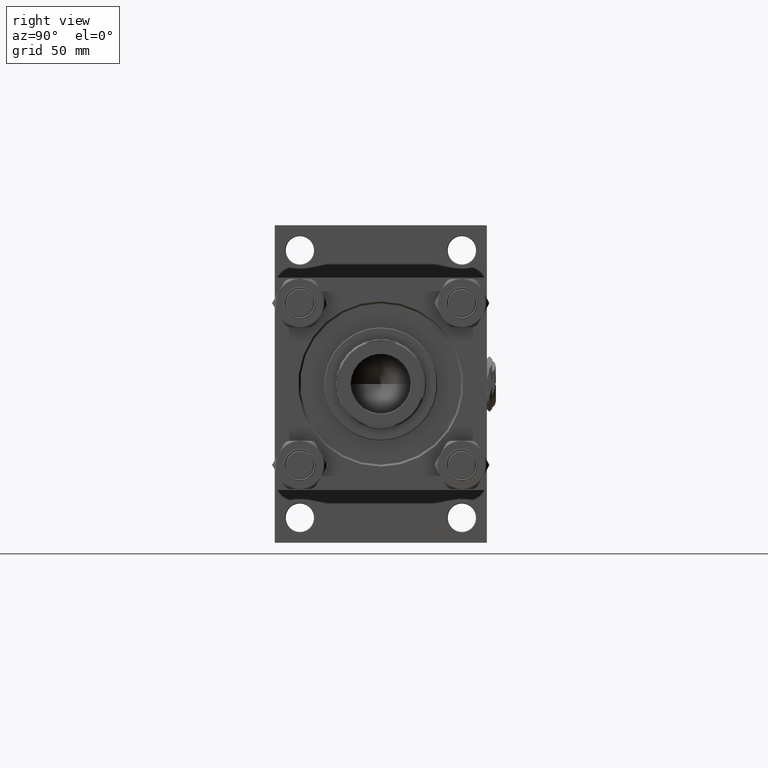
[diagram: clean part render]
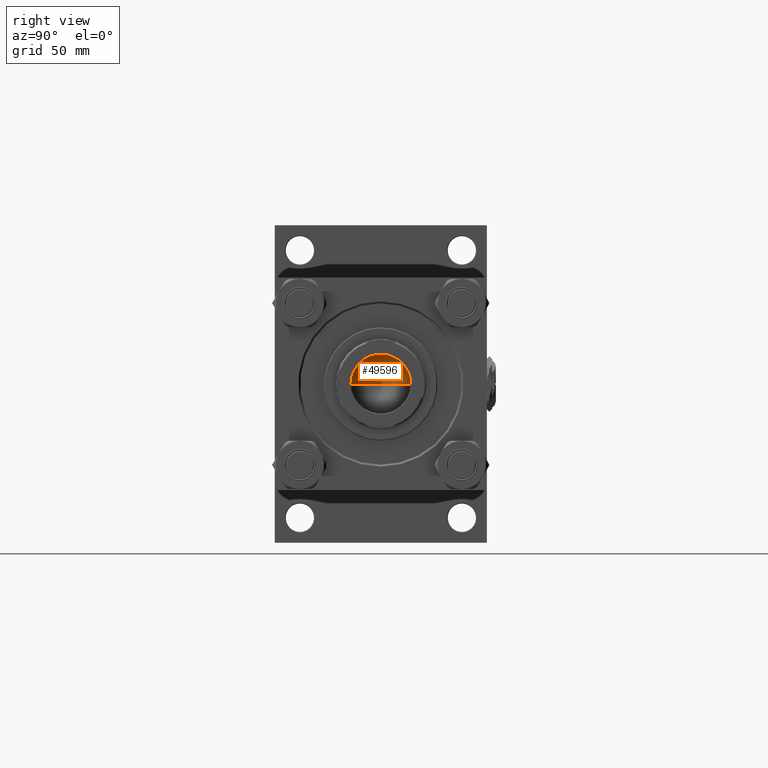
[diagram: same view with one face highlighted and labeled with its STEP entity id]
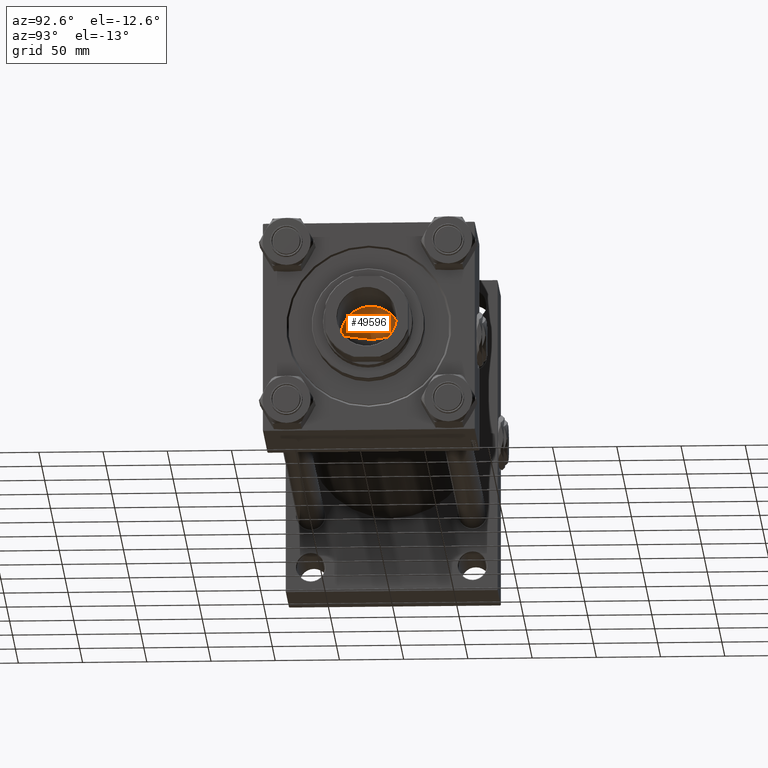
[diagram: same view with one face highlighted and labeled with its STEP entity id]
A machine part, right view. The second image highlights one B-rep face of the part: STEP entity #49596.
A second angle (auxiliary view) of the same face is appended — the face is thin or edge-on in the first view.
In plain terms, the highlighted conical surface has half-angle 59 deg.
Its self-contained STEP definition (entity closure, byte-faithful):
#4408 = DIRECTION ( 'NONE',  ( 1.000000000000000000, 0.000000000000000000, 0.000000000000000000 ) ) ;
#10664 = EDGE_CURVE ( 'NONE', #42372, #35112, #38170, .T. ) ;
#15196 = FACE_OUTER_BOUND ( 'NONE', #49979, .T. ) ;
#16076 = CARTESIAN_POINT ( 'NONE',  ( 23.24999999999998579, 0.000000000000000000, 359.0000000000000000 ) ) ;
#19452 = CARTESIAN_POINT ( 'NONE',  ( 0.000000000000000000, 0.000000000000000000, 359.0000000000000000 ) ) ;
#23160 = VECTOR ( 'NONE', #41116, 1000.000000000000000 ) ;
#24953 = CARTESIAN_POINT ( 'NONE',  ( -1.584115414415908206E-14, 0.000000000000000000, 345.0299906076091929 ) ) ;
#27440 = DIRECTION ( 'NONE',  ( -0.000000000000000000, -0.000000000000000000, 1.000000000000000000 ) ) ;
#27947 = LINE ( 'NONE', #28988, #46034 ) ;
#28988 = CARTESIAN_POINT ( 'NONE',  ( 23.24999999999998579, 0.000000000000000000, 359.0000000000000000 ) ) ;
#29443 = EDGE_CURVE ( 'NONE', #35112, #35465, #34744, .T. ) ;
#29739 = CARTESIAN_POINT ( 'NONE',  ( -23.24999999999998579, 2.847303808017594561E-15, 359.0000000000000000 ) ) ;
#30896 = DIRECTION ( 'NONE',  ( 1.000000000000000000, 0.000000000000000000, 0.000000000000000000 ) ) ;
#32885 = CARTESIAN_POINT ( 'NONE',  ( 0.000000000000000000, 0.000000000000000000, 359.0000000000000000 ) ) ;
#34744 = CIRCLE ( 'NONE', #41526, 23.24999999999998579 ) ;
#35112 = VERTEX_POINT ( 'NONE', #29739 ) ;
#35224 = ORIENTED_EDGE ( 'NONE', *, *, #29443, .T. ) ;
#35465 = VERTEX_POINT ( 'NONE', #16076 ) ;
#38170 = LINE ( 'NONE', #41621, #23160 ) ;
#39590 = ORIENTED_EDGE ( 'NONE', *, *, #51311, .F. ) ;
#40684 = DIRECTION ( 'NONE',  ( 0.8571673007021117785, 0.000000000000000000, 0.5150380749100550437 ) ) ;
#41116 = DIRECTION ( 'NONE',  ( -0.8571673007021117785, 1.049727191138617956E-16, 0.5150380749100550437 ) ) ;
#41526 = AXIS2_PLACEMENT_3D ( 'NONE', #32885, #49653, #4408 ) ;
#41621 = CARTESIAN_POINT ( 'NONE',  ( -23.24999999999998579, 2.847303808017594561E-15, 359.0000000000000000 ) ) ;
#42372 = VERTEX_POINT ( 'NONE', #24953 ) ;
#43566 = AXIS2_PLACEMENT_3D ( 'NONE', #19452, #27440, #30896 ) ;
#46034 = VECTOR ( 'NONE', #40684, 1000.000000000000000 ) ;
#47619 = ORIENTED_EDGE ( 'NONE', *, *, #10664, .T. ) ;
#49596 = ADVANCED_FACE ( 'NONE', ( #15196 ), #51214, .F. ) ;
#49653 = DIRECTION ( 'NONE',  ( -0.000000000000000000, -0.000000000000000000, 1.000000000000000000 ) ) ;
#49979 = EDGE_LOOP ( 'NONE', ( #39590, #47619, #35224 ) ) ;
#51214 = CONICAL_SURFACE ( 'NONE', #43566, 23.24999999999998579, 1.029744258676653423 ) ;
#51311 = EDGE_CURVE ( 'NONE', #42372, #35465, #27947, .T. ) ;